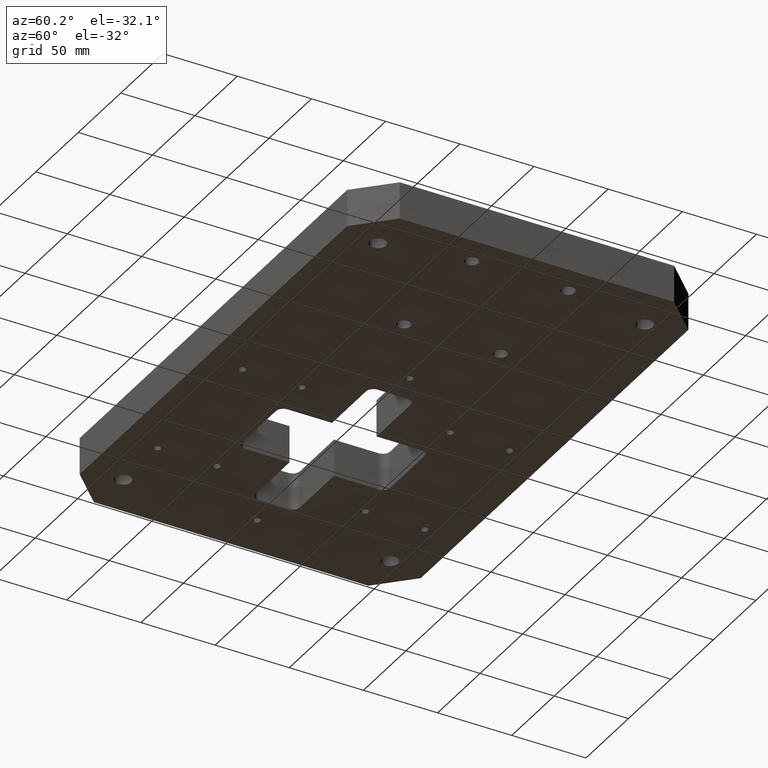
[diagram: clean part render]
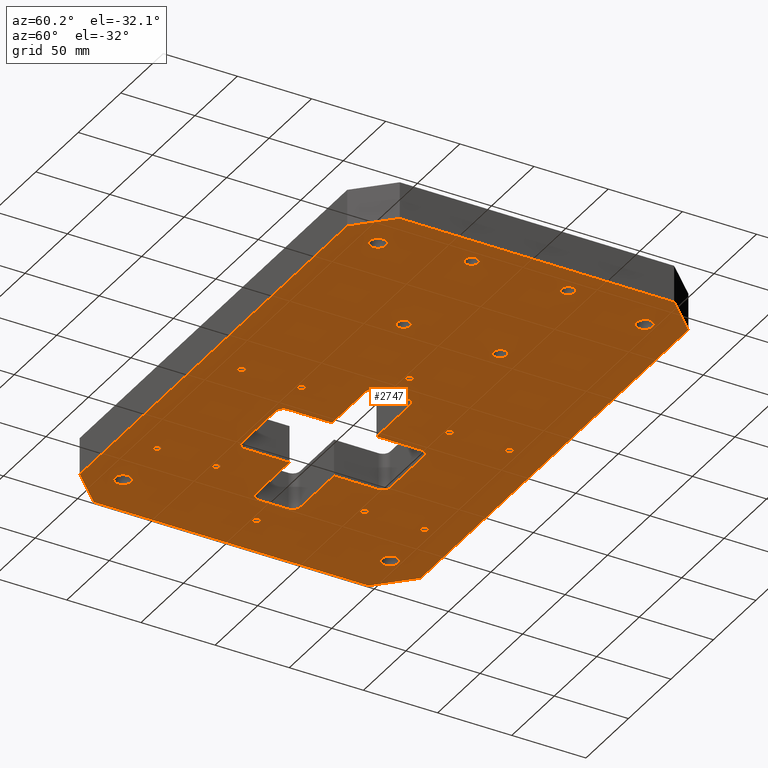
[diagram: same view with one face highlighted and labeled with its STEP entity id]
A machine part, auxiliary view. The second image highlights one B-rep face of the part: STEP entity #2747.
In plain terms, the highlighted planar face has unit normal (0, 0, -1).
Its self-contained STEP definition (entity closure, byte-faithful):
#143=CARTESIAN_POINT('',(-150.0,95.500000000000000,-12.500000000000000));
#144=VERTEX_POINT('',#143);
#160=CARTESIAN_POINT('',(-150.0,84.500000000000000,-12.500000000000000));
#161=VERTEX_POINT('',#160);
#168=CARTESIAN_POINT('',(-150.0,90.0,-12.500000000000000));
#169=DIRECTION('',(0.0,0.0,1.0));
#170=DIRECTION('',(0.0,1.0,0.0));
#171=AXIS2_PLACEMENT_3D('',#168,#169,#170);
#172=CIRCLE('',#171,5.500000000000000);
#173=EDGE_CURVE('',#144,#161,#172,.T.);
#227=CARTESIAN_POINT('',(-150.0,-84.500000000000000,-12.500000000000000));
#228=VERTEX_POINT('',#227);
#244=CARTESIAN_POINT('',(-150.0,-95.500000000000000,-12.500000000000000));
#245=VERTEX_POINT('',#244);
#252=CARTESIAN_POINT('',(-150.0,-90.0,-12.500000000000000));
#253=DIRECTION('',(0.0,0.0,1.0));
#254=DIRECTION('',(0.0,1.0,0.0));
#255=AXIS2_PLACEMENT_3D('',#252,#253,#254);
#256=CIRCLE('',#255,5.500000000000000);
#257=EDGE_CURVE('',#228,#245,#256,.T.);
#311=CARTESIAN_POINT('',(150.0,95.500000000000071,-12.500000000000000));
#312=VERTEX_POINT('',#311);
#328=CARTESIAN_POINT('',(150.0,84.500000000000071,-12.500000000000000));
#329=VERTEX_POINT('',#328);
#336=CARTESIAN_POINT('',(150.0,90.000000000000071,-12.500000000000000));
#337=DIRECTION('',(0.0,0.0,1.0));
#338=DIRECTION('',(0.0,1.0,0.0));
#339=AXIS2_PLACEMENT_3D('',#336,#337,#338);
#340=CIRCLE('',#339,5.500000000000000);
#341=EDGE_CURVE('',#312,#329,#340,.T.);
#395=CARTESIAN_POINT('',(150.0,-84.499999999999943,-12.500000000000000));
#396=VERTEX_POINT('',#395);
#412=CARTESIAN_POINT('',(150.0,-95.499999999999943,-12.500000000000000));
#413=VERTEX_POINT('',#412);
#420=CARTESIAN_POINT('',(150.0,-89.999999999999943,-12.500000000000000));
#421=DIRECTION('',(0.0,0.0,1.0));
#422=DIRECTION('',(0.0,1.0,0.0));
#423=AXIS2_PLACEMENT_3D('',#420,#421,#422);
#424=CIRCLE('',#423,5.500000000000000);
#425=EDGE_CURVE('',#396,#413,#424,.T.);
#479=CARTESIAN_POINT('',(159.999999999999970,36.956000000000003,-12.500000000000000));
#480=VERTEX_POINT('',#479);
#496=CARTESIAN_POINT('',(159.999999999999970,28.044000000000000,-12.500000000000000));
#497=VERTEX_POINT('',#496);
#504=CARTESIAN_POINT('',(159.999999999999970,32.500000000000000,-12.500000000000000));
#505=DIRECTION('',(0.0,0.0,1.0));
#506=DIRECTION('',(0.0,1.0,0.0));
#507=AXIS2_PLACEMENT_3D('',#504,#505,#506);
#508=CIRCLE('',#507,4.456000000000000);
#509=EDGE_CURVE('',#480,#497,#508,.T.);
#521=CARTESIAN_POINT('',(159.999999999999970,-28.044000000000000,-12.500000000000000));
#522=VERTEX_POINT('',#521);
#538=CARTESIAN_POINT('',(159.999999999999970,-36.956000000000003,-12.500000000000000));
#539=VERTEX_POINT('',#538);
#546=CARTESIAN_POINT('',(159.999999999999970,-32.500000000000000,-12.500000000000000));
#547=DIRECTION('',(0.0,0.0,1.0));
#548=DIRECTION('',(0.0,1.0,0.0));
#549=AXIS2_PLACEMENT_3D('',#546,#547,#548);
#550=CIRCLE('',#549,4.456000000000000);
#551=EDGE_CURVE('',#522,#539,#550,.T.);
#563=CARTESIAN_POINT('',(79.999999999999972,36.955999999999989,-12.500000000000000));
#564=VERTEX_POINT('',#563);
#580=CARTESIAN_POINT('',(79.999999999999972,28.043999999999986,-12.500000000000000));
#581=VERTEX_POINT('',#580);
#588=CARTESIAN_POINT('',(79.999999999999972,32.499999999999986,-12.500000000000000));
#589=DIRECTION('',(0.0,0.0,1.0));
#590=DIRECTION('',(0.0,1.0,0.0));
#591=AXIS2_PLACEMENT_3D('',#588,#589,#590);
#592=CIRCLE('',#591,4.456000000000000);
#593=EDGE_CURVE('',#564,#581,#592,.T.);
#605=CARTESIAN_POINT('',(79.999999999999972,-28.044000000000015,-12.500000000000000));
#606=VERTEX_POINT('',#605);
#622=CARTESIAN_POINT('',(79.999999999999972,-36.956000000000017,-12.500000000000000));
#623=VERTEX_POINT('',#622);
#630=CARTESIAN_POINT('',(79.999999999999972,-32.500000000000014,-12.500000000000000));
#631=DIRECTION('',(0.0,0.0,1.0));
#632=DIRECTION('',(0.0,1.0,0.0));
#633=AXIS2_PLACEMENT_3D('',#630,#631,#632);
#634=CIRCLE('',#633,4.456000000000000);
#635=EDGE_CURVE('',#606,#623,#634,.T.);
#647=CARTESIAN_POINT('',(-110.000000000000010,92.458749999999995,-12.500000000000000));
#648=VERTEX_POINT('',#647);
#664=CARTESIAN_POINT('',(-110.000000000000010,87.541250000000005,-12.500000000000000));
#665=VERTEX_POINT('',#664);
#672=CARTESIAN_POINT('',(-110.000000000000010,90.0,-12.500000000000000));
#673=DIRECTION('',(0.0,0.0,1.0));
#674=DIRECTION('',(0.0,1.0,0.0));
#675=AXIS2_PLACEMENT_3D('',#672,#673,#674);
#676=CIRCLE('',#675,2.458750000000000);
#677=EDGE_CURVE('',#648,#665,#676,.T.);
#689=CARTESIAN_POINT('',(-110.000000000000010,52.458750000000002,-12.500000000000000));
#690=VERTEX_POINT('',#689);
#706=CARTESIAN_POINT('',(-110.000000000000010,47.541249999999998,-12.500000000000000));
#707=VERTEX_POINT('',#706);
#714=CARTESIAN_POINT('',(-110.000000000000010,50.0,-12.500000000000000));
#715=DIRECTION('',(0.0,0.0,1.0));
#716=DIRECTION('',(0.0,1.0,0.0));
#717=AXIS2_PLACEMENT_3D('',#714,#715,#716);
#718=CIRCLE('',#717,2.458750000000000);
#719=EDGE_CURVE('',#690,#707,#718,.T.);
#731=CARTESIAN_POINT('',(-10.000000000000014,92.458750000000023,-12.500000000000000));
#732=VERTEX_POINT('',#731);
#748=CARTESIAN_POINT('',(-10.000000000000014,87.541250000000034,-12.500000000000000));
#749=VERTEX_POINT('',#748);
#756=CARTESIAN_POINT('',(-10.000000000000014,90.000000000000028,-12.500000000000000));
#757=DIRECTION('',(0.0,0.0,1.0));
#758=DIRECTION('',(0.0,1.0,0.0));
#759=AXIS2_PLACEMENT_3D('',#756,#757,#758);
#760=CIRCLE('',#759,2.458750000000000);
#761=EDGE_CURVE('',#732,#749,#760,.T.);
#773=CARTESIAN_POINT('',(-10.000000000000014,52.458750000000023,-12.500000000000000));
#774=VERTEX_POINT('',#773);
#790=CARTESIAN_POINT('',(-10.000000000000014,47.541250000000019,-12.500000000000000));
#791=VERTEX_POINT('',#790);
#798=CARTESIAN_POINT('',(-10.000000000000014,50.000000000000021,-12.500000000000000));
#799=DIRECTION('',(0.0,0.0,1.0));
#800=DIRECTION('',(0.0,1.0,0.0));
#801=AXIS2_PLACEMENT_3D('',#798,#799,#800);
#802=CIRCLE('',#801,2.458750000000000);
#803=EDGE_CURVE('',#774,#791,#802,.T.);
#815=CARTESIAN_POINT('',(-110.000000000000010,-47.541249999999998,-12.500000000000000));
#816=VERTEX_POINT('',#815);
#832=CARTESIAN_POINT('',(-110.000000000000010,-52.458750000000002,-12.500000000000000));
#833=VERTEX_POINT('',#832);
#840=CARTESIAN_POINT('',(-110.000000000000010,-50.0,-12.500000000000000));
#841=DIRECTION('',(0.0,0.0,1.0));
#842=DIRECTION('',(0.0,1.0,0.0));
#843=AXIS2_PLACEMENT_3D('',#840,#841,#842);
#844=CIRCLE('',#843,2.458750000000000);
#845=EDGE_CURVE('',#816,#833,#844,.T.);
#857=CARTESIAN_POINT('',(-110.000000000000010,-87.541250000000005,-12.500000000000000));
#858=VERTEX_POINT('',#857);
#874=CARTESIAN_POINT('',(-110.000000000000010,-92.458749999999995,-12.500000000000000));
#875=VERTEX_POINT('',#874);
#882=CARTESIAN_POINT('',(-110.000000000000010,-90.0,-12.500000000000000));
#883=DIRECTION('',(0.0,0.0,1.0));
#884=DIRECTION('',(0.0,1.0,0.0));
#885=AXIS2_PLACEMENT_3D('',#882,#883,#884);
#886=CIRCLE('',#885,2.458750000000000);
#887=EDGE_CURVE('',#858,#875,#886,.T.);
#899=CARTESIAN_POINT('',(-10.000000000000014,-47.541249999999970,-12.500000000000000));
#900=VERTEX_POINT('',#899);
#916=CARTESIAN_POINT('',(-10.000000000000014,-52.458749999999974,-12.500000000000000));
#917=VERTEX_POINT('',#916);
#924=CARTESIAN_POINT('',(-10.000000000000014,-49.999999999999972,-12.500000000000000));
#925=DIRECTION('',(0.0,0.0,1.0));
#926=DIRECTION('',(0.0,1.0,0.0));
#927=AXIS2_PLACEMENT_3D('',#924,#925,#926);
#928=CIRCLE('',#927,2.458750000000000);
#929=EDGE_CURVE('',#900,#917,#928,.T.);
#941=CARTESIAN_POINT('',(-10.000000000000014,-87.541249999999977,-12.500000000000000));
#942=VERTEX_POINT('',#941);
#958=CARTESIAN_POINT('',(-10.000000000000014,-92.458749999999966,-12.500000000000000));
#959=VERTEX_POINT('',#958);
#966=CARTESIAN_POINT('',(-10.000000000000014,-89.999999999999972,-12.500000000000000));
#967=DIRECTION('',(0.0,0.0,1.0));
#968=DIRECTION('',(0.0,1.0,0.0));
#969=AXIS2_PLACEMENT_3D('',#966,#967,#968);
#970=CIRCLE('',#969,2.458750000000000);
#971=EDGE_CURVE('',#942,#959,#970,.T.);
#983=CARTESIAN_POINT('',(-150.000000000000030,2.458750000000000,-12.500000000000000));
#984=VERTEX_POINT('',#983);
#1000=CARTESIAN_POINT('',(-150.000000000000030,-2.458750000000000,-12.500000000000000));
#1001=VERTEX_POINT('',#1000);
#1008=CARTESIAN_POINT('',(-150.000000000000030,0.0,-12.500000000000000));
#1009=DIRECTION('',(0.0,0.0,1.0));
#1010=DIRECTION('',(0.0,1.0,0.0));
#1011=AXIS2_PLACEMENT_3D('',#1008,#1009,#1010);
#1012=CIRCLE('',#1011,2.458750000000000);
#1013=EDGE_CURVE('',#984,#1001,#1012,.T.);
#1025=CARTESIAN_POINT('',(29.999999999999972,2.458750000000040,-12.500000000000000));
#1026=VERTEX_POINT('',#1025);
#1042=CARTESIAN_POINT('',(29.999999999999972,-2.458749999999960,-12.500000000000000));
#1043=VERTEX_POINT('',#1042);
#1050=CARTESIAN_POINT('',(29.999999999999972,3.996803E-014,-12.500000000000000));
#1051=DIRECTION('',(0.0,0.0,1.0));
#1052=DIRECTION('',(0.0,1.0,0.0));
#1053=AXIS2_PLACEMENT_3D('',#1050,#1051,#1052);
#1054=CIRCLE('',#1053,2.458750000000000);
#1055=EDGE_CURVE('',#1026,#1043,#1054,.T.);
#1066=CARTESIAN_POINT('',(29.999999999999972,3.996803E-014,-12.500000000000000));
#1067=DIRECTION('',(0.0,0.0,1.0));
#1068=DIRECTION('',(0.0,1.0,0.0));
#1069=AXIS2_PLACEMENT_3D('',#1066,#1067,#1068);
#1070=CIRCLE('',#1069,2.458750000000000);
#1071=EDGE_CURVE('',#1043,#1026,#1070,.T.);
#1090=CARTESIAN_POINT('',(-150.000000000000030,0.0,-12.500000000000000));
#1091=DIRECTION('',(0.0,0.0,1.0));
#1092=DIRECTION('',(0.0,1.0,0.0));
#1093=AXIS2_PLACEMENT_3D('',#1090,#1091,#1092);
#1094=CIRCLE('',#1093,2.458750000000000);
#1095=EDGE_CURVE('',#1001,#984,#1094,.T.);
#1114=CARTESIAN_POINT('',(-10.000000000000014,-89.999999999999972,-12.500000000000000));
#1115=DIRECTION('',(0.0,0.0,1.0));
#1116=DIRECTION('',(0.0,1.0,0.0));
#1117=AXIS2_PLACEMENT_3D('',#1114,#1115,#1116);
#1118=CIRCLE('',#1117,2.458750000000000);
#1119=EDGE_CURVE('',#959,#942,#1118,.T.);
#1138=CARTESIAN_POINT('',(-10.000000000000014,-49.999999999999972,-12.500000000000000));
#1139=DIRECTION('',(0.0,0.0,1.0));
#1140=DIRECTION('',(0.0,1.0,0.0));
#1141=AXIS2_PLACEMENT_3D('',#1138,#1139,#1140);
#1142=CIRCLE('',#1141,2.458750000000000);
#1143=EDGE_CURVE('',#917,#900,#1142,.T.);
#1162=CARTESIAN_POINT('',(-110.000000000000010,-90.0,-12.500000000000000));
#1163=DIRECTION('',(0.0,0.0,1.0));
#1164=DIRECTION('',(0.0,1.0,0.0));
#1165=AXIS2_PLACEMENT_3D('',#1162,#1163,#1164);
#1166=CIRCLE('',#1165,2.458750000000000);
#1167=EDGE_CURVE('',#875,#858,#1166,.T.);
#1186=CARTESIAN_POINT('',(-110.000000000000010,-50.0,-12.500000000000000));
#1187=DIRECTION('',(0.0,0.0,1.0));
#1188=DIRECTION('',(0.0,1.0,0.0));
#1189=AXIS2_PLACEMENT_3D('',#1186,#1187,#1188);
#1190=CIRCLE('',#1189,2.458750000000000);
#1191=EDGE_CURVE('',#833,#816,#1190,.T.);
#1210=CARTESIAN_POINT('',(-10.000000000000014,50.000000000000021,-12.500000000000000));
#1211=DIRECTION('',(0.0,0.0,1.0));
#1212=DIRECTION('',(0.0,1.0,0.0));
#1213=AXIS2_PLACEMENT_3D('',#1210,#1211,#1212);
#1214=CIRCLE('',#1213,2.458750000000000);
#1215=EDGE_CURVE('',#791,#774,#1214,.T.);
#1234=CARTESIAN_POINT('',(-10.000000000000014,90.000000000000028,-12.500000000000000));
#1235=DIRECTION('',(0.0,0.0,1.0));
#1236=DIRECTION('',(0.0,1.0,0.0));
#1237=AXIS2_PLACEMENT_3D('',#1234,#1235,#1236);
#1238=CIRCLE('',#1237,2.458750000000000);
#1239=EDGE_CURVE('',#749,#732,#1238,.T.);
#1258=CARTESIAN_POINT('',(-110.000000000000010,50.0,-12.500000000000000));
#1259=DIRECTION('',(0.0,0.0,1.0));
#1260=DIRECTION('',(0.0,1.0,0.0));
#1261=AXIS2_PLACEMENT_3D('',#1258,#1259,#1260);
#1262=CIRCLE('',#1261,2.458750000000000);
#1263=EDGE_CURVE('',#707,#690,#1262,.T.);
#1282=CARTESIAN_POINT('',(-110.000000000000010,90.0,-12.500000000000000));
#1283=DIRECTION('',(0.0,0.0,1.0));
#1284=DIRECTION('',(0.0,1.0,0.0));
#1285=AXIS2_PLACEMENT_3D('',#1282,#1283,#1284);
#1286=CIRCLE('',#1285,2.458750000000000);
#1287=EDGE_CURVE('',#665,#648,#1286,.T.);
#1316=CARTESIAN_POINT('',(-79.999999999999829,-50.000000000000007,-12.500000000000000));
#1317=VERTEX_POINT('',#1316);
#1324=CARTESIAN_POINT('',(-84.999999999999829,-45.000000000000007,-12.500000000000000));
#1325=VERTEX_POINT('',#1324);
#1326=CARTESIAN_POINT('',(-79.999999999999829,-45.000000000000007,-12.499999999999986));
#1327=DIRECTION('',(0.0,0.0,-1.000000000000000));
#1328=DIRECTION('',(-0.707106781186547,-0.707106781186547,0.0));
#1329=AXIS2_PLACEMENT_3D('',#1326,#1327,#1328);
#1330=CIRCLE('',#1329,4.999999999999999);
#1331=EDGE_CURVE('',#1317,#1325,#1330,.T.);
#1356=CARTESIAN_POINT('',(-39.999999999999829,-50.000000000000007,-12.500000000000000));
#1357=VERTEX_POINT('',#1356);
#1364=CARTESIAN_POINT('',(-39.999999999999829,-50.000000000000007,-12.500000000000000));
#1365=DIRECTION('',(-1.0,0.0,0.0));
#1366=VECTOR('',#1365,40.0);
#1367=LINE('',#1364,#1366);
#1368=EDGE_CURVE('',#1357,#1317,#1367,.T.);
#1387=CARTESIAN_POINT('',(-34.999999999999829,-45.000000000000007,-12.500000000000000));
#1388=VERTEX_POINT('',#1387);
#1395=CARTESIAN_POINT('',(-39.999999999999829,-45.000000000000007,-12.499999999999986));
#1396=DIRECTION('',(0.0,0.0,-1.000000000000000));
#1397=DIRECTION('',(0.707106781186547,-0.707106781186547,0.0));
#1398=AXIS2_PLACEMENT_3D('',#1395,#1396,#1397);
#1399=CIRCLE('',#1398,4.999999999999999);
#1400=EDGE_CURVE('',#1388,#1357,#1399,.T.);
#1420=CARTESIAN_POINT('',(-34.999999999999829,-15.000000000000007,-12.500000000000000));
#1421=VERTEX_POINT('',#1420);
#1428=CARTESIAN_POINT('',(-34.999999999999829,-15.000000000000007,-12.500000000000000));
#1429=DIRECTION('',(0.0,-1.0,0.0));
#1430=VECTOR('',#1429,30.0);
#1431=LINE('',#1428,#1430);
#1432=EDGE_CURVE('',#1421,#1388,#1431,.T.);
#1453=CARTESIAN_POINT('',(10.000000000000185,-10.000000000000007,-12.500000000000000));
#1454=VERTEX_POINT('',#1453);
#1461=CARTESIAN_POINT('',(5.000000000000185,-15.000000000000007,-12.500000000000000));
#1462=VERTEX_POINT('',#1461);
#1463=CARTESIAN_POINT('',(5.000000000000185,-10.000000000000007,-12.499999999999996));
#1464=DIRECTION('',(0.0,0.0,-1.000000000000000));
#1465=DIRECTION('',(0.707106781186547,-0.707106781186547,0.0));
#1466=AXIS2_PLACEMENT_3D('',#1463,#1464,#1465);
#1467=CIRCLE('',#1466,4.999999999999999);
#1468=EDGE_CURVE('',#1454,#1462,#1467,.T.);
#1493=CARTESIAN_POINT('',(10.000000000000185,9.999999999999993,-12.500000000000000));
#1494=VERTEX_POINT('',#1493);
#1501=CARTESIAN_POINT('',(10.000000000000185,9.999999999999993,-12.500000000000000));
#1502=DIRECTION('',(0.0,-1.0,0.0));
#1503=VECTOR('',#1502,20.0);
#1504=LINE('',#1501,#1503);
#1505=EDGE_CURVE('',#1494,#1454,#1504,.T.);
#1524=CARTESIAN_POINT('',(5.000000000000185,14.999999999999993,-12.500000000000000));
#1525=VERTEX_POINT('',#1524);
#1532=CARTESIAN_POINT('',(5.000000000000185,9.999999999999993,-12.500000000000004));
#1533=DIRECTION('',(0.0,0.0,-1.000000000000000));
#1534=DIRECTION('',(0.707106781186547,0.707106781186547,0.0));
#1535=AXIS2_PLACEMENT_3D('',#1532,#1533,#1534);
#1536=CIRCLE('',#1535,4.999999999999999);
#1537=EDGE_CURVE('',#1525,#1494,#1536,.T.);
#1557=CARTESIAN_POINT('',(-34.999999999999829,14.999999999999993,-12.500000000000000));
#1558=VERTEX_POINT('',#1557);
#1565=CARTESIAN_POINT('',(-34.999999999999829,14.999999999999993,-12.500000000000000));
#1566=DIRECTION('',(1.0,0.0,0.0));
#1567=VECTOR('',#1566,40.000000000000014);
#1568=LINE('',#1565,#1567);
#1569=EDGE_CURVE('',#1558,#1525,#1568,.T.);
#1590=CARTESIAN_POINT('',(-39.999999999999829,49.999999999999993,-12.500000000000000));
#1591=VERTEX_POINT('',#1590);
#1598=CARTESIAN_POINT('',(-34.999999999999829,44.999999999999993,-12.500000000000000));
#1599=VERTEX_POINT('',#1598);
#1600=CARTESIAN_POINT('',(-39.999999999999829,44.999999999999993,-12.500000000000014));
#1601=DIRECTION('',(0.0,0.0,-1.000000000000000));
#1602=DIRECTION('',(0.707106781186547,0.707106781186547,0.0));
#1603=AXIS2_PLACEMENT_3D('',#1600,#1601,#1602);
#1604=CIRCLE('',#1603,4.999999999999999);
#1605=EDGE_CURVE('',#1591,#1599,#1604,.T.);
#1630=CARTESIAN_POINT('',(-79.999999999999829,49.999999999999993,-12.500000000000000));
#1631=VERTEX_POINT('',#1630);
#1638=CARTESIAN_POINT('',(-79.999999999999829,49.999999999999993,-12.500000000000000));
#1639=DIRECTION('',(1.0,0.0,0.0));
#1640=VECTOR('',#1639,40.0);
#1641=LINE('',#1638,#1640);
#1642=EDGE_CURVE('',#1631,#1591,#1641,.T.);
#1661=CARTESIAN_POINT('',(-84.999999999999829,44.999999999999993,-12.500000000000000));
#1662=VERTEX_POINT('',#1661);
#1669=CARTESIAN_POINT('',(-79.999999999999829,44.999999999999993,-12.500000000000014));
#1670=DIRECTION('',(0.0,0.0,-1.000000000000000));
#1671=DIRECTION('',(-0.707106781186547,0.707106781186547,0.0));
#1672=AXIS2_PLACEMENT_3D('',#1669,#1670,#1671);
#1673=CIRCLE('',#1672,4.999999999999999);
#1674=EDGE_CURVE('',#1662,#1631,#1673,.T.);
#1694=CARTESIAN_POINT('',(-84.999999999999829,14.999999999999993,-12.500000000000000));
#1695=VERTEX_POINT('',#1694);
#1702=CARTESIAN_POINT('',(-84.999999999999829,14.999999999999993,-12.500000000000000));
#1703=DIRECTION('',(0.0,1.0,0.0));
#1704=VECTOR('',#1703,30.0);
#1705=LINE('',#1702,#1704);
#1706=EDGE_CURVE('',#1695,#1662,#1705,.T.);
#1727=CARTESIAN_POINT('',(-124.999999999999830,-15.000000000000007,-12.500000000000000));
#1728=VERTEX_POINT('',#1727);
#1735=CARTESIAN_POINT('',(-129.999999999999830,-10.000000000000007,-12.500000000000000));
#1736=VERTEX_POINT('',#1735);
#1737=CARTESIAN_POINT('',(-124.999999999999830,-10.000000000000007,-12.499999999999996));
#1738=DIRECTION('',(0.0,0.0,-1.000000000000000));
#1739=DIRECTION('',(-0.707106781186547,-0.707106781186547,0.0));
#1740=AXIS2_PLACEMENT_3D('',#1737,#1738,#1739);
#1741=CIRCLE('',#1740,4.999999999999999);
#1742=EDGE_CURVE('',#1728,#1736,#1741,.T.);
#1767=CARTESIAN_POINT('',(-84.999999999999815,-15.000000000000007,-12.500000000000000));
#1768=VERTEX_POINT('',#1767);
#1775=CARTESIAN_POINT('',(-84.999999999999815,-15.000000000000007,-12.500000000000000));
#1776=DIRECTION('',(-1.0,0.0,0.0));
#1777=VECTOR('',#1776,40.000000000000014);
#1778=LINE('',#1775,#1777);
#1779=EDGE_CURVE('',#1768,#1728,#1778,.T.);
#1800=CARTESIAN_POINT('',(-129.999999999999830,9.999999999999993,-12.500000000000000));
#1801=VERTEX_POINT('',#1800);
#1808=CARTESIAN_POINT('',(-124.999999999999830,14.999999999999993,-12.500000000000000));
#1809=VERTEX_POINT('',#1808);
#1810=CARTESIAN_POINT('',(-124.999999999999830,9.999999999999993,-12.500000000000004));
#1811=DIRECTION('',(0.0,0.0,-1.000000000000000));
#1812=DIRECTION('',(-0.707106781186547,0.707106781186547,0.0));
#1813=AXIS2_PLACEMENT_3D('',#1810,#1811,#1812);
#1814=CIRCLE('',#1813,4.999999999999999);
#1815=EDGE_CURVE('',#1801,#1809,#1814,.T.);
#1832=CARTESIAN_POINT('',(-129.999999999999830,-10.000000000000007,-12.500000000000000));
#1833=DIRECTION('',(0.0,1.0,0.0));
#1834=VECTOR('',#1833,20.0);
#1835=LINE('',#1832,#1834);
#1836=EDGE_CURVE('',#1736,#1801,#1835,.T.);
#1854=CARTESIAN_POINT('',(79.999999999999972,-32.500000000000014,-12.500000000000000));
#1855=DIRECTION('',(0.0,0.0,1.0));
#1856=DIRECTION('',(0.0,1.0,0.0));
#1857=AXIS2_PLACEMENT_3D('',#1854,#1855,#1856);
#1858=CIRCLE('',#1857,4.456000000000000);
#1859=EDGE_CURVE('',#623,#606,#1858,.T.);
#1878=CARTESIAN_POINT('',(79.999999999999972,32.499999999999986,-12.500000000000000));
#1879=DIRECTION('',(0.0,0.0,1.0));
#1880=DIRECTION('',(0.0,1.0,0.0));
#1881=AXIS2_PLACEMENT_3D('',#1878,#1879,#1880);
#1882=CIRCLE('',#1881,4.456000000000000);
#1883=EDGE_CURVE('',#581,#564,#1882,.T.);
#1902=CARTESIAN_POINT('',(159.999999999999970,-32.500000000000000,-12.500000000000000));
#1903=DIRECTION('',(0.0,0.0,1.0));
#1904=DIRECTION('',(0.0,1.0,0.0));
#1905=AXIS2_PLACEMENT_3D('',#1902,#1903,#1904);
#1906=CIRCLE('',#1905,4.456000000000000);
#1907=EDGE_CURVE('',#539,#522,#1906,.T.);
#1926=CARTESIAN_POINT('',(159.999999999999970,32.500000000000000,-12.500000000000000));
#1927=DIRECTION('',(0.0,0.0,1.0));
#1928=DIRECTION('',(0.0,1.0,0.0));
#1929=AXIS2_PLACEMENT_3D('',#1926,#1927,#1928);
#1930=CIRCLE('',#1929,4.456000000000000);
#1931=EDGE_CURVE('',#497,#480,#1930,.T.);
#1994=CARTESIAN_POINT('',(150.0,-89.999999999999943,-12.500000000000000));
#1995=DIRECTION('',(0.0,0.0,1.0));
#1996=DIRECTION('',(0.0,1.0,0.0));
#1997=AXIS2_PLACEMENT_3D('',#1994,#1995,#1996);
#1998=CIRCLE('',#1997,5.500000000000000);
#1999=EDGE_CURVE('',#413,#396,#1998,.T.);
#2056=CARTESIAN_POINT('',(150.0,90.000000000000071,-12.500000000000000));
#2057=DIRECTION('',(0.0,0.0,1.0));
#2058=DIRECTION('',(0.0,1.0,0.0));
#2059=AXIS2_PLACEMENT_3D('',#2056,#2057,#2058);
#2060=CIRCLE('',#2059,5.500000000000000);
#2061=EDGE_CURVE('',#329,#312,#2060,.T.);
#2118=CARTESIAN_POINT('',(-150.0,-90.0,-12.500000000000000));
#2119=DIRECTION('',(0.0,0.0,1.0));
#2120=DIRECTION('',(0.0,1.0,0.0));
#2121=AXIS2_PLACEMENT_3D('',#2118,#2119,#2120);
#2122=CIRCLE('',#2121,5.500000000000000);
#2123=EDGE_CURVE('',#245,#228,#2122,.T.);
#2180=CARTESIAN_POINT('',(-150.0,90.0,-12.500000000000000));
#2181=DIRECTION('',(0.0,0.0,1.0));
#2182=DIRECTION('',(0.0,1.0,0.0));
#2183=AXIS2_PLACEMENT_3D('',#2180,#2181,#2182);
#2184=CIRCLE('',#2183,5.500000000000000);
#2185=EDGE_CURVE('',#161,#144,#2184,.T.);
#2197=CARTESIAN_POINT('',(157.500000000000060,-115.0,-12.500000000000000));
#2198=VERTEX_POINT('',#2197);
#2199=CARTESIAN_POINT('',(180.000000000000030,-92.500000000000000,-12.500000000000000));
#2200=VERTEX_POINT('',#2199);
#2201=CARTESIAN_POINT('',(157.500000000000060,-115.0,-12.500000000000000));
#2202=DIRECTION('',(0.707106781186547,0.707106781186548,0.0));
#2203=VECTOR('',#2202,31.819805153394618);
#2204=LINE('',#2201,#2203);
#2205=EDGE_CURVE('',#2198,#2200,#2204,.T.);
#2246=CARTESIAN_POINT('',(-157.500000000000060,-115.0,-12.500000000000000));
#2247=VERTEX_POINT('',#2246);
#2254=CARTESIAN_POINT('',(-157.500000000000060,-115.0,-12.500000000000000));
#2255=DIRECTION('',(1.0,0.0,0.0));
#2256=VECTOR('',#2255,315.000000000000110);
#2257=LINE('',#2254,#2256);
#2258=EDGE_CURVE('',#2247,#2198,#2257,.T.);
#2438=CARTESIAN_POINT('',(-180.000000000000030,-92.500000000000028,-12.500000000000000));
#2439=VERTEX_POINT('',#2438);
#2440=CARTESIAN_POINT('',(-180.000000000000030,-92.500000000000028,-12.500000000000000));
#2441=DIRECTION('',(0.707106781186547,-0.707106781186547,0.0));
#2442=VECTOR('',#2441,31.819805153394601);
#2443=LINE('',#2440,#2442);
#2444=EDGE_CURVE('',#2439,#2247,#2443,.T.);
#2464=CARTESIAN_POINT('',(-180.000000000000030,92.499999999999972,-12.500000000000000));
#2465=VERTEX_POINT('',#2464);
#2472=CARTESIAN_POINT('',(-180.000000000000030,92.499999999999972,-12.500000000000000));
#2473=DIRECTION('',(0.0,-1.0,0.0));
#2474=VECTOR('',#2473,185.0);
#2475=LINE('',#2472,#2474);
#2476=EDGE_CURVE('',#2465,#2439,#2475,.T.);
#2486=CARTESIAN_POINT('',(-157.500000000000000,115.0,-12.500000000000000));
#2487=VERTEX_POINT('',#2486);
#2488=CARTESIAN_POINT('',(-157.500000000000000,115.0,-12.500000000000000));
#2489=DIRECTION('',(-0.707106781186548,-0.707106781186548,0.0));
#2490=VECTOR('',#2489,31.819805153394679);
#2491=LINE('',#2488,#2490);
#2492=EDGE_CURVE('',#2487,#2465,#2491,.T.);
#2512=CARTESIAN_POINT('',(157.500000000000000,115.0,-12.500000000000000));
#2513=VERTEX_POINT('',#2512);
#2520=CARTESIAN_POINT('',(157.500000000000000,115.0,-12.500000000000000));
#2521=DIRECTION('',(-1.0,0.0,0.0));
#2522=VECTOR('',#2521,315.0);
#2523=LINE('',#2520,#2522);
#2524=EDGE_CURVE('',#2513,#2487,#2523,.T.);
#2534=CARTESIAN_POINT('',(179.999999999999970,92.500000000000000,-12.500000000000000));
#2535=VERTEX_POINT('',#2534);
#2536=CARTESIAN_POINT('',(179.999999999999970,92.500000000000000,-12.500000000000000));
#2537=DIRECTION('',(-0.707106781186547,0.707106781186548,0.0));
#2538=VECTOR('',#2537,31.819805153394618);
#2539=LINE('',#2536,#2538);
#2540=EDGE_CURVE('',#2535,#2513,#2539,.T.);
#2559=CARTESIAN_POINT('',(180.000000000000030,-92.500000000000000,-12.500000000000000));
#2560=DIRECTION('',(0.0,1.0,0.0));
#2561=VECTOR('',#2560,185.0);
#2562=LINE('',#2559,#2561);
#2563=EDGE_CURVE('',#2200,#2535,#2562,.T.);
#2576=CARTESIAN_POINT('',(-84.999999999999829,-45.000000000000007,-12.500000000000000));
#2577=DIRECTION('',(0.0,1.0,0.0));
#2578=VECTOR('',#2577,30.0);
#2579=LINE('',#2576,#2578);
#2580=EDGE_CURVE('',#1325,#1768,#2579,.T.);
#2593=CARTESIAN_POINT('',(-124.999999999999830,14.999999999999993,-12.500000000000000));
#2594=DIRECTION('',(1.0,0.0,0.0));
#2595=VECTOR('',#2594,40.0);
#2596=LINE('',#2593,#2595);
#2597=EDGE_CURVE('',#1809,#1695,#2596,.T.);
#2610=CARTESIAN_POINT('',(-34.999999999999829,44.999999999999993,-12.500000000000000));
#2611=DIRECTION('',(0.0,-1.0,0.0));
#2612=VECTOR('',#2611,30.0);
#2613=LINE('',#2610,#2612);
#2614=EDGE_CURVE('',#1599,#1558,#2613,.T.);
#2627=CARTESIAN_POINT('',(5.000000000000185,-15.000000000000007,-12.500000000000000));
#2628=DIRECTION('',(-1.0,0.0,0.0));
#2629=VECTOR('',#2628,40.000000000000014);
#2630=LINE('',#2627,#2629);
#2631=EDGE_CURVE('',#1462,#1421,#2630,.T.);
#2638=CARTESIAN_POINT('',(0.0,-7.105427E-015,-12.500000000000000));
#2639=DIRECTION('',(0.0,0.0,-1.0));
#2640=DIRECTION('',(0.0,1.0,0.0));
#2641=AXIS2_PLACEMENT_3D('',#2638,#2639,#2640);
#2642=PLANE('',#2641);
#2643=ORIENTED_EDGE('',*,*,#2205,.F.);
#2644=ORIENTED_EDGE('',*,*,#2258,.F.);
#2645=ORIENTED_EDGE('',*,*,#2444,.F.);
#2646=ORIENTED_EDGE('',*,*,#2476,.F.);
#2647=ORIENTED_EDGE('',*,*,#2492,.F.);
#2648=ORIENTED_EDGE('',*,*,#2524,.F.);
#2649=ORIENTED_EDGE('',*,*,#2540,.F.);
#2650=ORIENTED_EDGE('',*,*,#2563,.F.);
#2651=EDGE_LOOP('',(#2643,#2644,#2645,#2646,#2647,#2648,#2649,#2650));
#2652=FACE_OUTER_BOUND('',#2651,.T.);
#2653=ORIENTED_EDGE('',*,*,#1071,.T.);
#2654=ORIENTED_EDGE('',*,*,#1055,.T.);
#2655=EDGE_LOOP('',(#2653,#2654));
#2656=FACE_BOUND('',#2655,.T.);
#2657=ORIENTED_EDGE('',*,*,#1095,.T.);
#2658=ORIENTED_EDGE('',*,*,#1013,.T.);
#2659=EDGE_LOOP('',(#2657,#2658));
#2660=FACE_BOUND('',#2659,.T.);
#2661=ORIENTED_EDGE('',*,*,#1119,.T.);
#2662=ORIENTED_EDGE('',*,*,#971,.T.);
#2663=EDGE_LOOP('',(#2661,#2662));
#2664=FACE_BOUND('',#2663,.T.);
#2665=ORIENTED_EDGE('',*,*,#1143,.T.);
#2666=ORIENTED_EDGE('',*,*,#929,.T.);
#2667=EDGE_LOOP('',(#2665,#2666));
#2668=FACE_BOUND('',#2667,.T.);
#2669=ORIENTED_EDGE('',*,*,#1167,.T.);
#2670=ORIENTED_EDGE('',*,*,#887,.T.);
#2671=EDGE_LOOP('',(#2669,#2670));
#2672=FACE_BOUND('',#2671,.T.);
#2673=ORIENTED_EDGE('',*,*,#1191,.T.);
#2674=ORIENTED_EDGE('',*,*,#845,.T.);
#2675=EDGE_LOOP('',(#2673,#2674));
#2676=FACE_BOUND('',#2675,.T.);
#2677=ORIENTED_EDGE('',*,*,#1215,.T.);
#2678=ORIENTED_EDGE('',*,*,#803,.T.);
#2679=EDGE_LOOP('',(#2677,#2678));
#2680=FACE_BOUND('',#2679,.T.);
#2681=ORIENTED_EDGE('',*,*,#1239,.T.);
#2682=ORIENTED_EDGE('',*,*,#761,.T.);
#2683=EDGE_LOOP('',(#2681,#2682));
#2684=FACE_BOUND('',#2683,.T.);
#2685=ORIENTED_EDGE('',*,*,#1263,.T.);
#2686=ORIENTED_EDGE('',*,*,#719,.T.);
#2687=EDGE_LOOP('',(#2685,#2686));
#2688=FACE_BOUND('',#2687,.T.);
#2689=ORIENTED_EDGE('',*,*,#1287,.T.);
#2690=ORIENTED_EDGE('',*,*,#677,.T.);
#2691=EDGE_LOOP('',(#2689,#2690));
#2692=FACE_BOUND('',#2691,.T.);
#2693=ORIENTED_EDGE('',*,*,#1859,.T.);
#2694=ORIENTED_EDGE('',*,*,#635,.T.);
#2695=EDGE_LOOP('',(#2693,#2694));
#2696=FACE_BOUND('',#2695,.T.);
#2697=ORIENTED_EDGE('',*,*,#1883,.T.);
#2698=ORIENTED_EDGE('',*,*,#593,.T.);
#2699=EDGE_LOOP('',(#2697,#2698));
#2700=FACE_BOUND('',#2699,.T.);
#2701=ORIENTED_EDGE('',*,*,#1907,.T.);
#2702=ORIENTED_EDGE('',*,*,#551,.T.);
#2703=EDGE_LOOP('',(#2701,#2702));
#2704=FACE_BOUND('',#2703,.T.);
#2705=ORIENTED_EDGE('',*,*,#1931,.T.);
#2706=ORIENTED_EDGE('',*,*,#509,.T.);
#2707=EDGE_LOOP('',(#2705,#2706));
#2708=FACE_BOUND('',#2707,.T.);
#2709=ORIENTED_EDGE('',*,*,#1999,.T.);
#2710=ORIENTED_EDGE('',*,*,#425,.T.);
#2711=EDGE_LOOP('',(#2709,#2710));
#2712=FACE_BOUND('',#2711,.T.);
#2713=ORIENTED_EDGE('',*,*,#2061,.T.);
#2714=ORIENTED_EDGE('',*,*,#341,.T.);
#2715=EDGE_LOOP('',(#2713,#2714));
#2716=FACE_BOUND('',#2715,.T.);
#2717=ORIENTED_EDGE('',*,*,#2123,.T.);
#2718=ORIENTED_EDGE('',*,*,#257,.T.);
#2719=EDGE_LOOP('',(#2717,#2718));
#2720=FACE_BOUND('',#2719,.T.);
#2721=ORIENTED_EDGE('',*,*,#2185,.T.);
#2722=ORIENTED_EDGE('',*,*,#173,.T.);
#2723=EDGE_LOOP('',(#2721,#2722));
#2724=FACE_BOUND('',#2723,.T.);
#2725=ORIENTED_EDGE('',*,*,#1432,.F.);
#2726=ORIENTED_EDGE('',*,*,#2631,.F.);
#2727=ORIENTED_EDGE('',*,*,#1468,.F.);
#2728=ORIENTED_EDGE('',*,*,#1505,.F.);
#2729=ORIENTED_EDGE('',*,*,#1537,.F.);
#2730=ORIENTED_EDGE('',*,*,#1569,.F.);
#2731=ORIENTED_EDGE('',*,*,#2614,.F.);
#2732=ORIENTED_EDGE('',*,*,#1605,.F.);
#2733=ORIENTED_EDGE('',*,*,#1642,.F.);
#2734=ORIENTED_EDGE('',*,*,#1674,.F.);
#2735=ORIENTED_EDGE('',*,*,#1706,.F.);
#2736=ORIENTED_EDGE('',*,*,#2597,.F.);
#2737=ORIENTED_EDGE('',*,*,#1815,.F.);
#2738=ORIENTED_EDGE('',*,*,#1836,.F.);
#2739=ORIENTED_EDGE('',*,*,#1742,.F.);
#2740=ORIENTED_EDGE('',*,*,#1779,.F.);
#2741=ORIENTED_EDGE('',*,*,#2580,.F.);
#2742=ORIENTED_EDGE('',*,*,#1331,.F.);
#2743=ORIENTED_EDGE('',*,*,#1368,.F.);
#2744=ORIENTED_EDGE('',*,*,#1400,.F.);
#2745=EDGE_LOOP('',(#2725,#2726,#2727,#2728,#2729,#2730,#2731,#2732,#2733,#2734,#2735,#2736,#2737,#2738,#2739,#2740,#2741,#2742,#2743,#2744));
#2746=FACE_BOUND('',#2745,.T.);
#2747=ADVANCED_FACE('',(#2652,#2656,#2660,#2664,#2668,#2672,#2676,#2680,#2684,#2688,#2692,#2696,#2700,#2704,#2708,#2712,#2716,#2720,#2724,#2746),#2642,.T.);